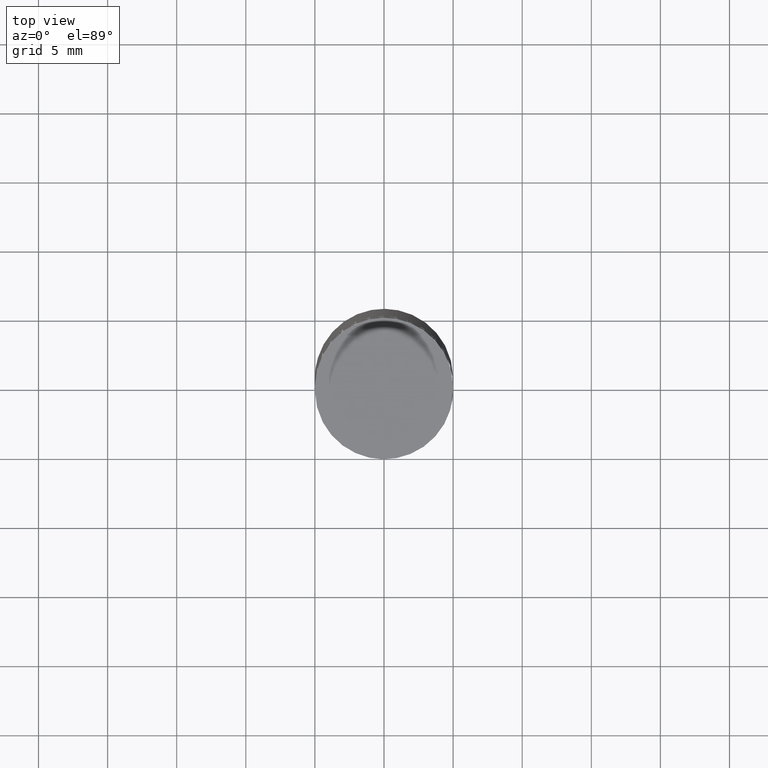
[diagram: clean part render]
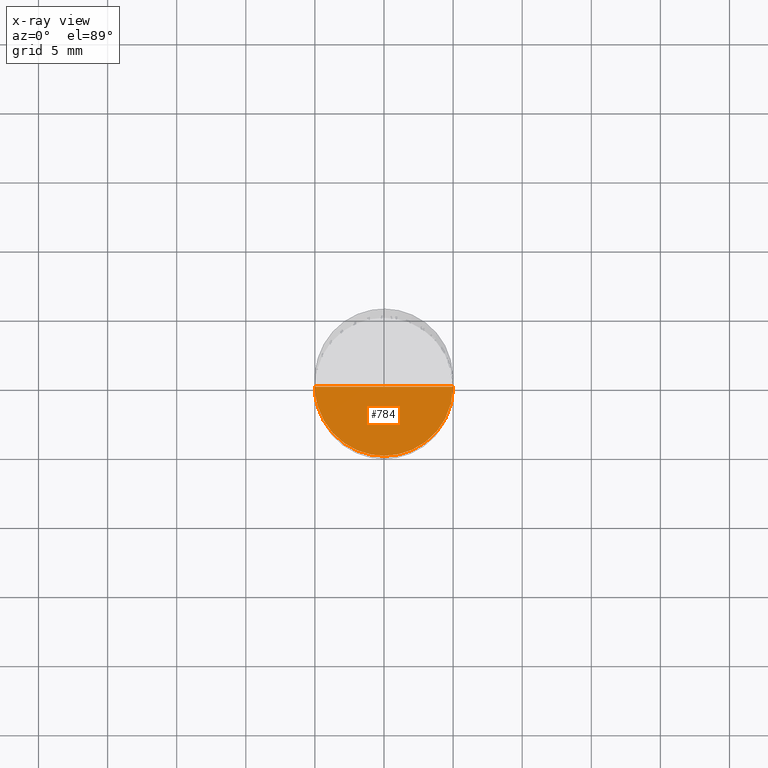
[diagram: x-ray — body ghosted, one internal face saturated and labeled with its STEP entity id]
A machine part, top view, then the same camera in x-ray: the body is ghosted and one INTERNAL B-rep face — a face not visible from any outside direction — is saturated and labeled: STEP entity #784.
In plain terms, the highlighted face is a freeform B-spline surface patch.
Its self-contained STEP definition (entity closure, byte-faithful):
#639=CARTESIAN_POINT('',(5.0,0.0,-6.0));
#643=CARTESIAN_POINT('',(-5.0,0.0,-6.0));
#644=CARTESIAN_POINT('',(0.0,0.0,-6.0));
#647=CARTESIAN_POINT('',(-5.0,-5.0,-6.0));
#648=CARTESIAN_POINT('',(0.0,-5.0,-6.0));
#649=CARTESIAN_POINT('',(5.0,-5.0,-6.0));
#769=(
BOUNDED_SURFACE()
B_SPLINE_SURFACE(1,2,(
(#643,#647,#648,#649,#639),
(#644,#644,#644,#644,#644)
), .UNSPECIFIED.,.F.,.F.,.F.)
B_SPLINE_SURFACE_WITH_KNOTS((2,2),(3,2,3),(
0.0,1.0),(
0.0,0.5,1.0), .UNSPECIFIED.)
GEOMETRIC_REPRESENTATION_ITEM()
RATIONAL_B_SPLINE_SURFACE(((1.0,0.707106781187,1.0,0.707106781187,1.0),
(1.0,0.707106781187,1.0,0.707106781187,1.0)
))
REPRESENTATION_ITEM('')
SURFACE()
);
#770=(
BOUNDED_CURVE()
B_SPLINE_CURVE(2,(#639,#649,#648,#647,#643),.UNSPECIFIED.,.F.,.F.)
B_SPLINE_CURVE_WITH_KNOTS((3,2,3),
(0.0,0.5,1.0),.UNSPECIFIED.)
CURVE()
GEOMETRIC_REPRESENTATION_ITEM()
RATIONAL_B_SPLINE_CURVE((1.0,0.707106781187,1.0,0.707106781187,1.0))
REPRESENTATION_ITEM('')
);
#771=(
BOUNDED_CURVE()
B_SPLINE_CURVE(1,(#643,#644),.UNSPECIFIED.,.F.,.F.)
B_SPLINE_CURVE_WITH_KNOTS((2,2),
(0.0,1.0),.UNSPECIFIED.)
CURVE()
GEOMETRIC_REPRESENTATION_ITEM()
RATIONAL_B_SPLINE_CURVE((1.0,1.0))
REPRESENTATION_ITEM('')
);
#772=(
BOUNDED_CURVE()
B_SPLINE_CURVE(1,(#644,#639),.UNSPECIFIED.,.F.,.F.)
B_SPLINE_CURVE_WITH_KNOTS((2,2),
(0.0,1.0),.UNSPECIFIED.)
CURVE()
GEOMETRIC_REPRESENTATION_ITEM()
RATIONAL_B_SPLINE_CURVE((1.0,1.0))
REPRESENTATION_ITEM('')
);
#773=VERTEX_POINT('',#639);
#774=VERTEX_POINT('',#643);
#775=VERTEX_POINT('',#644);
#776=EDGE_CURVE('',#773,#774,#770,.T.);
#777=EDGE_CURVE('',#774,#775,#771,.T.);
#778=EDGE_CURVE('',#775,#773,#772,.T.);
#779=ORIENTED_EDGE('',*,*,#776,.T.);
#780=ORIENTED_EDGE('',*,*,#777,.T.);
#781=ORIENTED_EDGE('',*,*,#778,.T.);
#782=EDGE_LOOP('',(#779,#780,#781));
#783=FACE_OUTER_BOUND('',#782,.T.);
#784=ADVANCED_FACE('',(#783),#769,.T.);